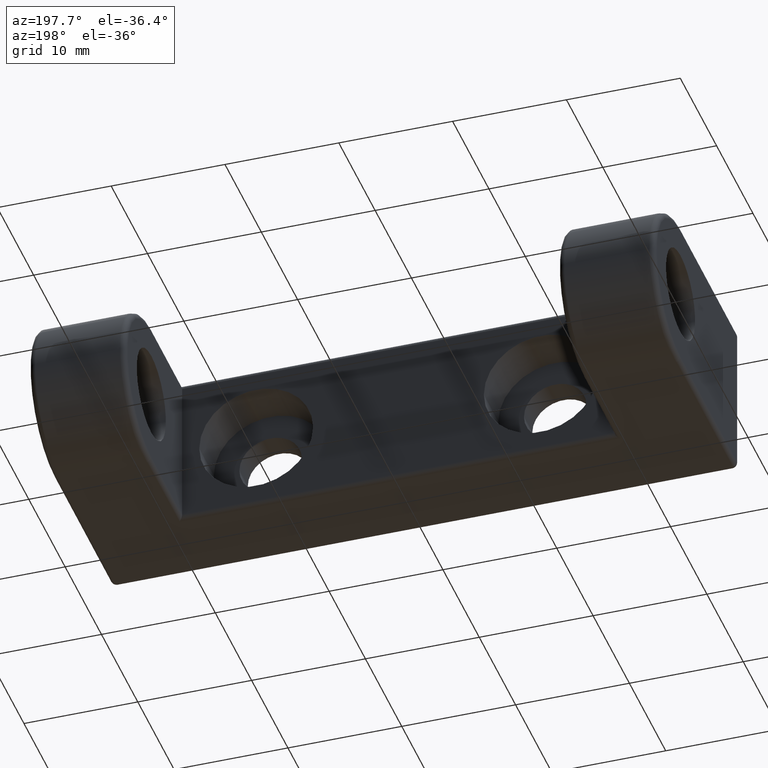
[diagram: clean part render]
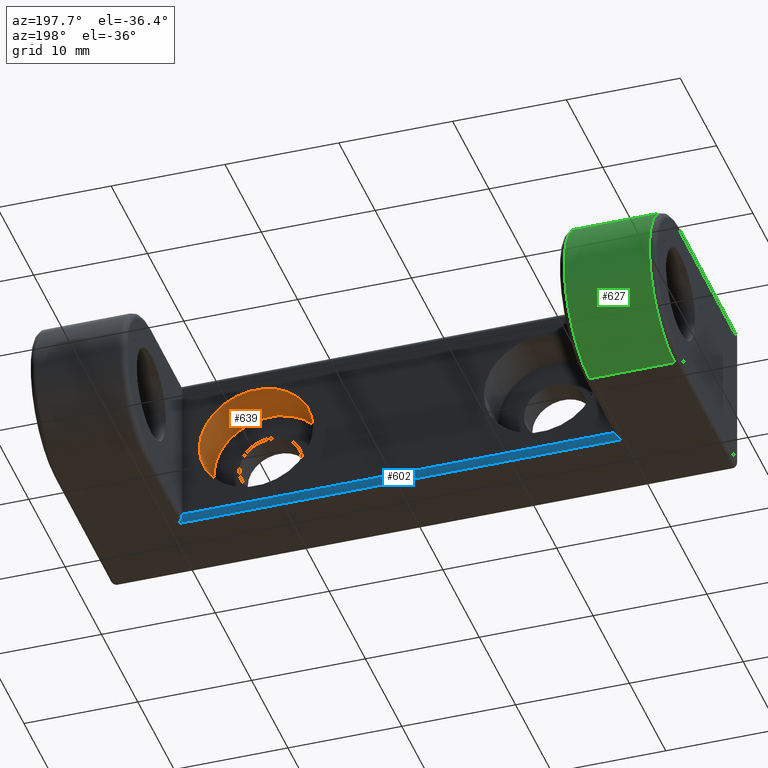
[diagram: same view with three faces highlighted in distinct colors, each labeled with its STEP entity id]
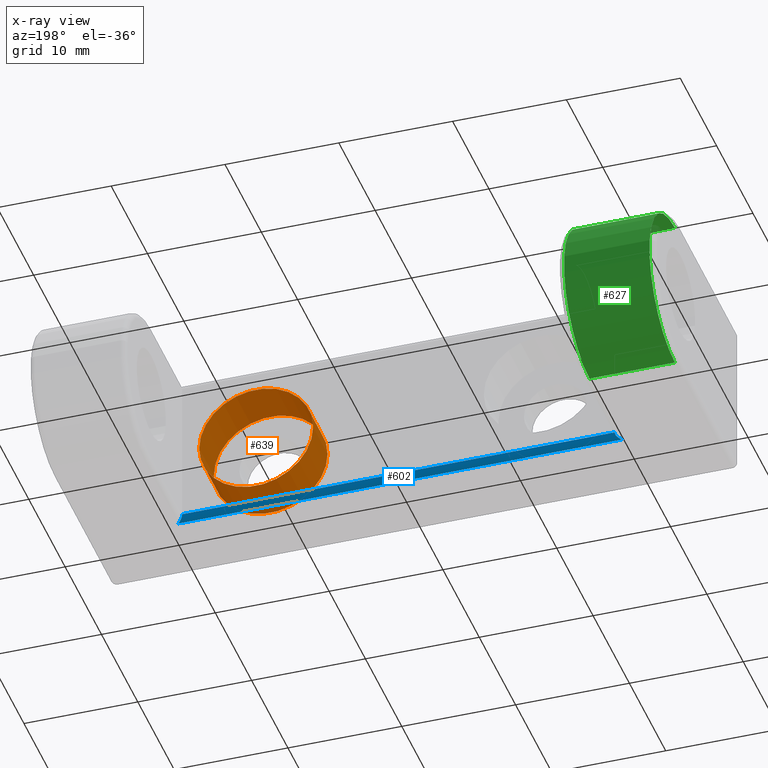
[diagram: x-ray of the same camera — body ghosted, the three highlighted faces saturated]
A machine part, auxiliary view with three faces highlighted in distinct colors.
The next image is the same camera in x-ray (body ghosted, the three faces saturated) — at least one of them is partly hidden behind the body in this view.
Their STEP definitions:

[orange] entity #639 — the highlighted cylindrical surface (bore or boss wall) has radius 5 mm, axis along (0, 1, 0).
#34=FACE_BOUND('',#153,.T.);
#93=FACE_OUTER_BOUND('',#152,.T.);
#152=EDGE_LOOP('',(#556));
#153=EDGE_LOOP('',(#557));
#177=CIRCLE('',#673,5.);
#208=CIRCLE('',#730,5.);
#301=VERTEX_POINT('',#1028);
#328=VERTEX_POINT('',#1126);
#365=EDGE_CURVE('',#301,#301,#177,.T.);
#410=EDGE_CURVE('',#328,#328,#208,.T.);
#556=ORIENTED_EDGE('',*,*,#365,.F.);
#557=ORIENTED_EDGE('',*,*,#410,.F.);
#597=CYLINDRICAL_SURFACE('',#732,5.);
#639=ADVANCED_FACE('',(#93,#34),#597,.F.);
#673=AXIS2_PLACEMENT_3D('',#1029,#813,#814);
#730=AXIS2_PLACEMENT_3D('',#1127,#941,#942);
#732=AXIS2_PLACEMENT_3D('',#1130,#945,#946);
#813=DIRECTION('center_axis',(-3.50596744618471E-16,-1.,0.));
#814=DIRECTION('ref_axis',(1.,-3.50596744618471E-16,0.));
#941=DIRECTION('center_axis',(3.50596744618471E-16,1.,0.));
#942=DIRECTION('ref_axis',(1.,-3.50596744618471E-16,0.));
#945=DIRECTION('center_axis',(3.50596744618471E-16,1.,0.));
#946=DIRECTION('ref_axis',(1.,-3.50596744618471E-16,0.));
#1028=CARTESIAN_POINT('',(17.5,-7.75000000000001,0.));
#1029=CARTESIAN_POINT('Origin',(12.5,-7.75000000000001,0.));
#1126=CARTESIAN_POINT('',(17.5,-11.75,0.));
#1127=CARTESIAN_POINT('Origin',(12.5,-11.75,0.));
#1130=CARTESIAN_POINT('Origin',(12.5,-9.75000000000001,0.));

[blue] entity #602 — the highlighted cylindrical surface (edge-blend (fillet) strip) has radius 0.5 mm, axis along (1, -0, 0).
#56=FACE_OUTER_BOUND('',#100,.T.);
#100=EDGE_LOOP('',(#417,#418,#419,#420));
#163=ELLIPSE('',#649,0.707106781186547,0.5);
#164=ELLIPSE('',#651,0.707106781186546,0.5);
#213=LINE('',#971,#247);
#214=LINE('',#974,#248);
#247=VECTOR('',#751,39.);
#248=VECTOR('',#754,38.);
#279=VERTEX_POINT('',#961);
#282=VERTEX_POINT('',#966);
#283=VERTEX_POINT('',#970);
#284=VERTEX_POINT('',#972);
#334=EDGE_CURVE('',#282,#279,#163,.T.);
#335=EDGE_CURVE('',#282,#283,#213,.T.);
#336=EDGE_CURVE('',#283,#284,#164,.T.);
#337=EDGE_CURVE('',#284,#279,#214,.T.);
#417=ORIENTED_EDGE('',*,*,#335,.T.);
#418=ORIENTED_EDGE('',*,*,#336,.T.);
#419=ORIENTED_EDGE('',*,*,#337,.T.);
#420=ORIENTED_EDGE('',*,*,#334,.F.);
#578=CYLINDRICAL_SURFACE('',#650,0.5);
#602=ADVANCED_FACE('',(#56),#578,.T.);
#649=AXIS2_PLACEMENT_3D('',#968,#747,#748);
#650=AXIS2_PLACEMENT_3D('',#969,#749,#750);
#651=AXIS2_PLACEMENT_3D('',#973,#752,#753);
#747=DIRECTION('center_axis',(0.707106781186548,0.707106781186548,-3.14018491736755E-15));
#748=DIRECTION('ref_axis',(0.707106781186547,-0.707106781186547,-3.14018491736755E-15));
#749=DIRECTION('center_axis',(1.,-3.50596744618471E-16,0.));
#750=DIRECTION('ref_axis',(0.,0.707106781186548,-0.707106781186548));
#751=DIRECTION('',(-1.,3.50596744618471E-16,0.));
#752=DIRECTION('center_axis',(0.707106781186549,-0.707106781186546,-3.14018491736755E-15));
#753=DIRECTION('ref_axis',(-0.707106781186546,-0.707106781186549,-3.14018491736757E-15));
#754=DIRECTION('',(1.,-3.50596744618471E-16,0.));
#961=CARTESIAN_POINT('',(19.,-7.75000000000001,-6.5));
#966=CARTESIAN_POINT('',(19.5,-8.25000000000001,-7.));
#968=CARTESIAN_POINT('Origin',(19.5,-8.25000000000001,-6.5));
#969=CARTESIAN_POINT('Origin',(9.5,-8.25000000000001,-6.5));
#970=CARTESIAN_POINT('',(-19.5,-8.25,-7.));
#971=CARTESIAN_POINT('',(9.5,-8.25000000000001,-7.));
#972=CARTESIAN_POINT('',(-19.,-7.75,-6.5));
#973=CARTESIAN_POINT('Origin',(-19.5,-8.25,-6.5));
#974=CARTESIAN_POINT('',(9.5,-7.75000000000001,-6.5));

[green] entity #627 — the highlighted cylindrical surface (partial cylindrical patch) has radius 7 mm, axis along (1, 0, 0).
#81=FACE_OUTER_BOUND('',#128,.T.);
#128=EDGE_LOOP('',(#520,#521,#522,#523));
#170=CIRCLE('',#657,7.);
#196=CIRCLE('',#705,7.);
#225=LINE('',#1016,#259);
#244=LINE('',#1094,#278);
#259=VECTOR('',#801,7.5);
#278=VECTOR('',#898,7.5);
#287=VERTEX_POINT('',#979);
#290=VERTEX_POINT('',#986);
#297=VERTEX_POINT('',#1015);
#316=VERTEX_POINT('',#1082);
#343=EDGE_CURVE('',#290,#287,#170,.T.);
#358=EDGE_CURVE('',#287,#297,#225,.T.);
#396=EDGE_CURVE('',#297,#316,#196,.T.);
#399=EDGE_CURVE('',#290,#316,#244,.T.);
#520=ORIENTED_EDGE('',*,*,#343,.F.);
#521=ORIENTED_EDGE('',*,*,#399,.T.);
#522=ORIENTED_EDGE('',*,*,#396,.F.);
#523=ORIENTED_EDGE('',*,*,#358,.F.);
#592=CYLINDRICAL_SURFACE('',#708,7.);
#627=ADVANCED_FACE('',(#81),#592,.T.);
#657=AXIS2_PLACEMENT_3D('',#988,#767,#768);
#705=AXIS2_PLACEMENT_3D('',#1089,#889,#890);
#708=AXIS2_PLACEMENT_3D('',#1093,#896,#897);
#767=DIRECTION('center_axis',(1.,0.,0.));
#768=DIRECTION('ref_axis',(0.,1.,6.12323399573676E-17));
#801=DIRECTION('',(-1.,-1.88401482966693E-16,0.));
#889=DIRECTION('center_axis',(-1.,-1.93082265152201E-16,0.));
#890=DIRECTION('ref_axis',(-1.88341405963196E-16,1.,6.12323399573677E-17));
#896=DIRECTION('center_axis',(1.,1.88401482966693E-16,0.));
#897=DIRECTION('ref_axis',(0.,0.,1.));
#898=DIRECTION('',(-1.,-1.88401482966693E-16,0.));
#979=CARTESIAN_POINT('',(-19.5,0.750000000000008,7.));
#986=CARTESIAN_POINT('',(-19.5,0.750000000000008,-7.));
#988=CARTESIAN_POINT('Origin',(-19.5,0.750000000000008,0.));
#1015=CARTESIAN_POINT('',(-27.,0.750000000000006,7.));
#1016=CARTESIAN_POINT('',(-27.5,0.750000000000006,7.));
#1082=CARTESIAN_POINT('',(-27.,0.750000000000006,-7.));
#1089=CARTESIAN_POINT('Origin',(-27.,0.750000000000006,0.));
#1093=CARTESIAN_POINT('Origin',(-27.5,0.750000000000006,0.));
#1094=CARTESIAN_POINT('',(-27.5,0.750000000000006,-7.));